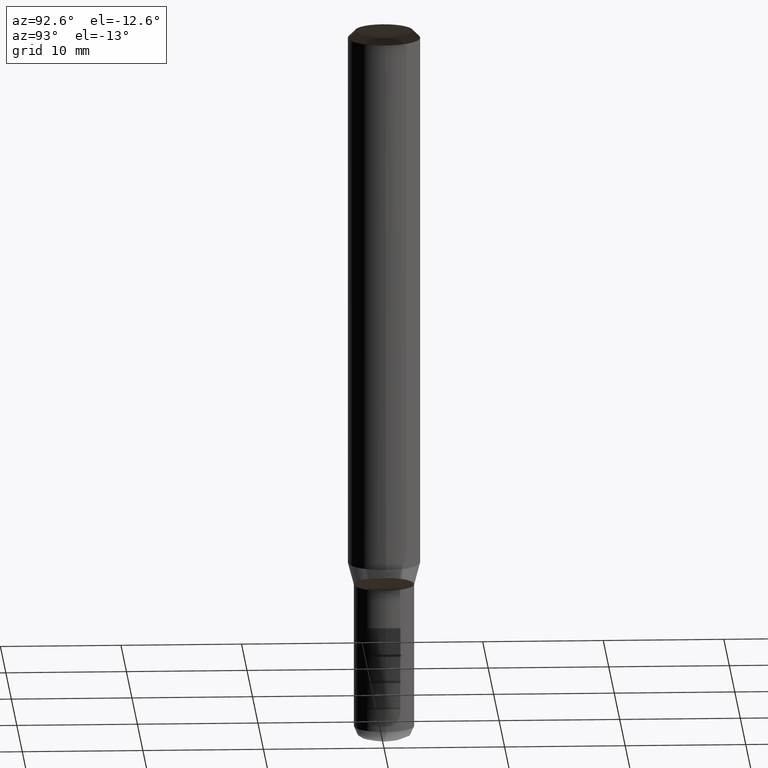
[diagram: clean part render]
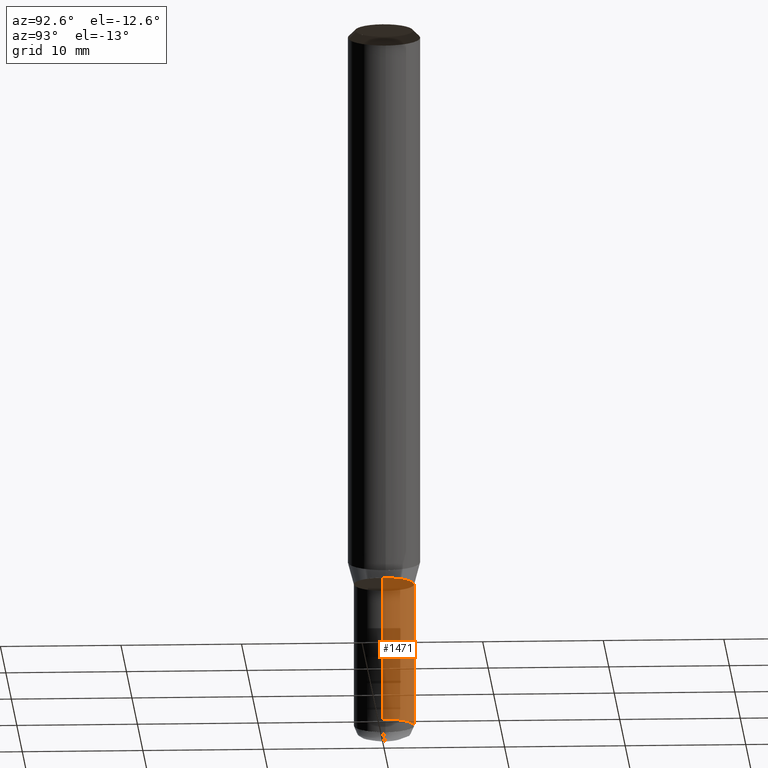
[diagram: same view with one face highlighted and labeled with its STEP entity id]
A machine part, auxiliary view. The second image highlights one B-rep face of the part: STEP entity #1471.
In plain terms, the highlighted face is a freeform B-spline surface patch.
Its self-contained STEP definition (entity closure, byte-faithful):
#1353=CARTESIAN_POINT('',(2.5,0.0,-13.866025403784));
#1354=CARTESIAN_POINT('',(2.5,2.5,-13.866025403784));
#1355=CARTESIAN_POINT('',(0.0,2.5,-13.866025403784));
#1356=CARTESIAN_POINT('',(-2.5,2.5,-13.866025403784));
#1357=CARTESIAN_POINT('',(-2.5,0.0,-13.866025403784));
#1358=CARTESIAN_POINT('',(2.5,0.0,-1.866025403784));
#1359=CARTESIAN_POINT('',(2.5,2.5,-1.866025403784));
#1360=CARTESIAN_POINT('',(0.0,2.5,-1.866025403784));
#1361=CARTESIAN_POINT('',(-2.5,2.5,-1.866025403784));
#1362=CARTESIAN_POINT('',(-2.5,0.0,-1.866025403784));
#1452=(
BOUNDED_SURFACE()
B_SPLINE_SURFACE(1,2,(
(#1353,#1354,#1355,#1356,#1357),
(#1358,#1359,#1360,#1361,#1362)
), .UNSPECIFIED.,.F.,.F.,.F.)
B_SPLINE_SURFACE_WITH_KNOTS((2,2),(3,2,3),(
0.0,1.0),(
0.0,0.5,1.0), .UNSPECIFIED.)
GEOMETRIC_REPRESENTATION_ITEM()
RATIONAL_B_SPLINE_SURFACE(((1.0,0.707106781187,1.0,0.707106781187,1.0),
(1.0,0.707106781187,1.0,0.707106781187,1.0)
))
REPRESENTATION_ITEM('')
SURFACE()
);
#1453=(
BOUNDED_CURVE()
B_SPLINE_CURVE(2,(#1358,#1359,#1360,#1361,#1362),.UNSPECIFIED.,.F.,.F.)
B_SPLINE_CURVE_WITH_KNOTS((3,2,3),
(0.0,0.5,1.0),.UNSPECIFIED.)
CURVE()
GEOMETRIC_REPRESENTATION_ITEM()
RATIONAL_B_SPLINE_CURVE((1.0,0.707106781187,1.0,0.707106781187,1.0))
REPRESENTATION_ITEM('')
);
#1454=(
BOUNDED_CURVE()
B_SPLINE_CURVE(1,(#1362,#1357),.UNSPECIFIED.,.F.,.F.)
B_SPLINE_CURVE_WITH_KNOTS((2,2),
(0.0,1.0),.UNSPECIFIED.)
CURVE()
GEOMETRIC_REPRESENTATION_ITEM()
RATIONAL_B_SPLINE_CURVE((1.0,1.0))
REPRESENTATION_ITEM('')
);
#1455=(
BOUNDED_CURVE()
B_SPLINE_CURVE(2,(#1357,#1356,#1355,#1354,#1353),.UNSPECIFIED.,.F.,.F.)
B_SPLINE_CURVE_WITH_KNOTS((3,2,3),
(0.0,0.5,1.0),.UNSPECIFIED.)
CURVE()
GEOMETRIC_REPRESENTATION_ITEM()
RATIONAL_B_SPLINE_CURVE((1.0,0.707106781187,1.0,0.707106781187,1.0))
REPRESENTATION_ITEM('')
);
#1456=(
BOUNDED_CURVE()
B_SPLINE_CURVE(1,(#1353,#1358),.UNSPECIFIED.,.F.,.F.)
B_SPLINE_CURVE_WITH_KNOTS((2,2),
(0.0,1.0),.UNSPECIFIED.)
CURVE()
GEOMETRIC_REPRESENTATION_ITEM()
RATIONAL_B_SPLINE_CURVE((1.0,1.0))
REPRESENTATION_ITEM('')
);
#1457=VERTEX_POINT('',#1353);
#1458=VERTEX_POINT('',#1357);
#1459=VERTEX_POINT('',#1358);
#1460=VERTEX_POINT('',#1362);
#1461=EDGE_CURVE('',#1459,#1460,#1453,.T.);
#1462=EDGE_CURVE('',#1460,#1458,#1454,.T.);
#1463=EDGE_CURVE('',#1458,#1457,#1455,.T.);
#1464=EDGE_CURVE('',#1457,#1459,#1456,.T.);
#1465=ORIENTED_EDGE('',*,*,#1461,.T.);
#1466=ORIENTED_EDGE('',*,*,#1462,.T.);
#1467=ORIENTED_EDGE('',*,*,#1463,.T.);
#1468=ORIENTED_EDGE('',*,*,#1464,.T.);
#1469=EDGE_LOOP('',(#1465,#1466,#1467,#1468));
#1470=FACE_OUTER_BOUND('',#1469,.T.);
#1471=ADVANCED_FACE('',(#1470),#1452,.T.);